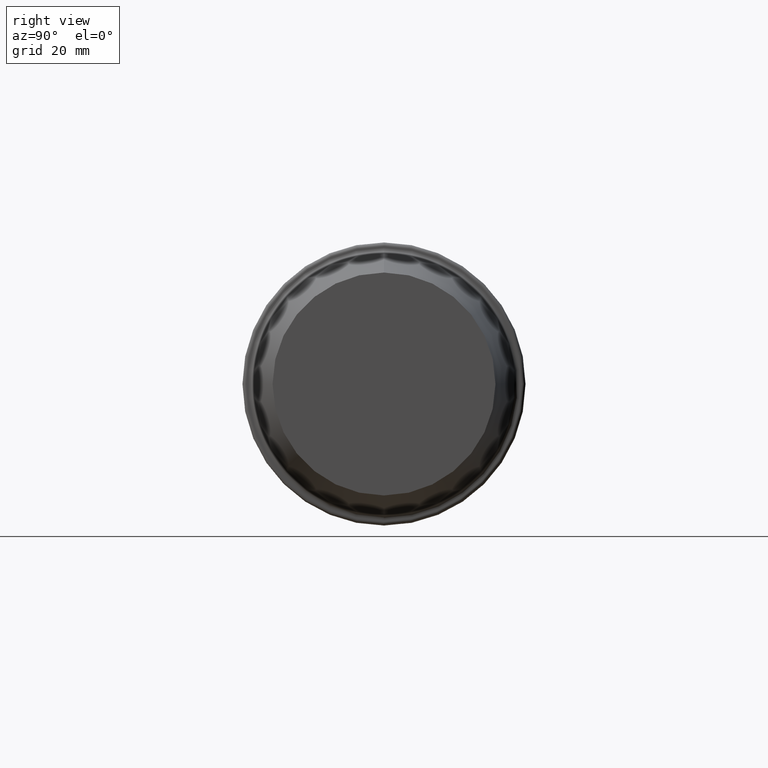
[diagram: clean part render]
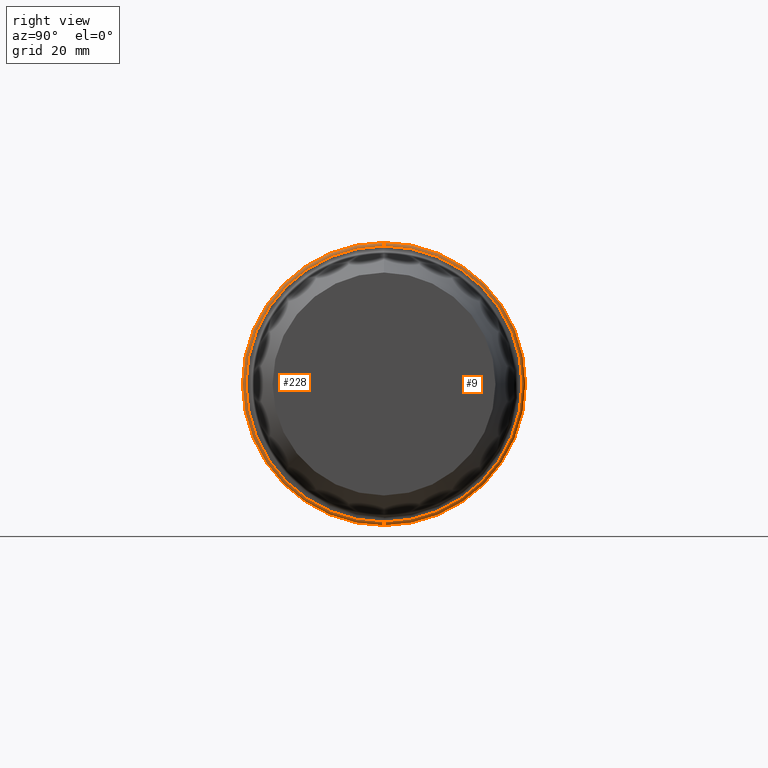
[diagram: same view with one multi-face feature highlighted, each face labeled with its STEP entity id]
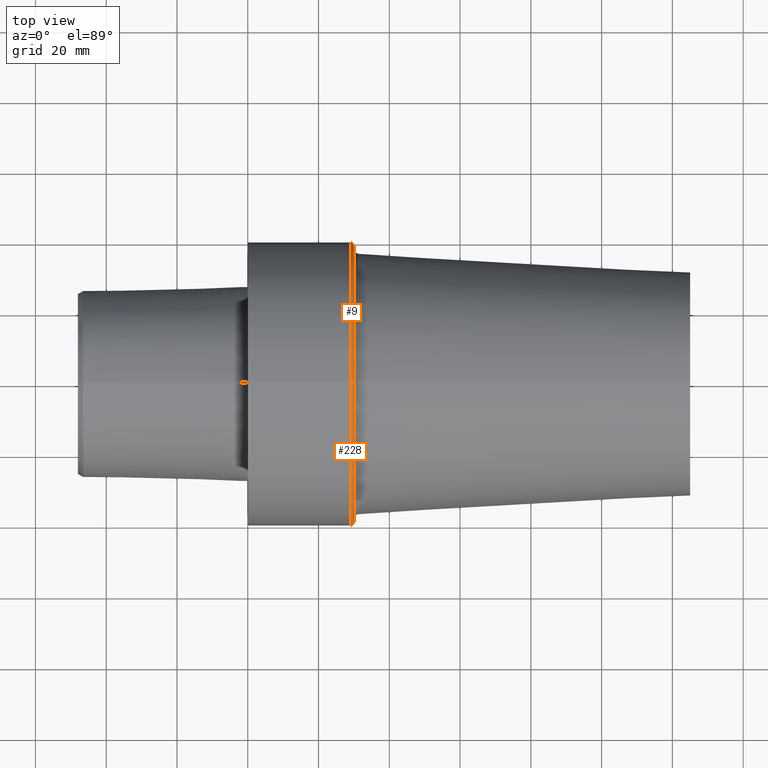
[diagram: same view with one multi-face feature highlighted, each face labeled with its STEP entity id]
A machine part, right view. The highlighted faces form ONE feature: a constant-radius fillet chain: 2 tangent blend faces with common blend radius 1 mm. The faces share edges in the B-rep.
A second angle (top view) of the same feature is appended — it is thin or edge-on in the first view.
Their STEP definitions:
[1] entity #228 (Torus):
#2 = VERTEX_POINT ( 'NONE', #54 ) ;
#15 = DIRECTION ( 'NONE',  ( 0.000000000000000000, 1.000000000000000000, 1.224646799147353947E-16 ) ) ;
#32 = AXIS2_PLACEMENT_3D ( 'NONE', #161, #333, #373 ) ;
#54 = CARTESIAN_POINT ( 'NONE',  ( 28.99999997041999933, 4.897668706494425201E-15, -39.99249995920764889 ) ) ;
#64 = EDGE_CURVE ( 'NONE', #87, #445, #360, .T. ) ;
#87 = VERTEX_POINT ( 'NONE', #318 ) ;
#93 = AXIS2_PLACEMENT_3D ( 'NONE', #101, #268, #277 ) ;
#101 = CARTESIAN_POINT ( 'NONE',  ( 29.99999996940000102, 0.000000000000000000, 0.000000000000000000 ) ) ;
#103 = EDGE_CURVE ( 'NONE', #87, #2, #509, .T. ) ;
#128 = DIRECTION ( 'NONE',  ( 0.000000000000000000, 0.000000000000000000, 1.000000000000000000 ) ) ;
#129 = TOROIDAL_SURFACE ( 'NONE', #168, 38.99249996022764719, 0.9999999989799999156 ) ;
#136 = AXIS2_PLACEMENT_3D ( 'NONE', #359, #15, #180 ) ;
#160 = EDGE_CURVE ( 'NONE', #445, #380, #419, .T. ) ;
#161 = CARTESIAN_POINT ( 'NONE',  ( 28.99999997041999933, 0.000000000000000000, 38.99249996022764719 ) ) ;
#162 = ORIENTED_EDGE ( 'NONE', *, *, #434, .F. ) ;
#168 = AXIS2_PLACEMENT_3D ( 'NONE', #460, #252, #128 ) ;
#171 = ORIENTED_EDGE ( 'NONE', *, *, #160, .T. ) ;
#180 = DIRECTION ( 'NONE',  ( 0.000000000000000000, -1.224646799147358384E-16, 1.000000000000000000 ) ) ;
#189 = DIRECTION ( 'NONE',  ( -1.000000000000000000, 0.000000000000000000, 0.000000000000000000 ) ) ;
#192 = CARTESIAN_POINT ( 'NONE',  ( 28.99999997041999933, 0.000000000000000000, 0.000000000000000000 ) ) ;
#196 = CARTESIAN_POINT ( 'NONE',  ( 28.99999997041999933, 0.000000000000000000, 39.99249995920764889 ) ) ;
#225 = EDGE_LOOP ( 'NONE', ( #469, #533, #171, #162 ) ) ;
#228 = ADVANCED_FACE ( 'NONE', ( #506 ), #129, .T. ) ;
#252 = DIRECTION ( 'NONE',  ( -1.000000000000000000, 0.000000000000000000, 0.000000000000000000 ) ) ;
#268 = DIRECTION ( 'NONE',  ( -1.000000000000000000, 0.000000000000000000, 0.000000000000000000 ) ) ;
#271 = AXIS2_PLACEMENT_3D ( 'NONE', #192, #189, #335 ) ;
#277 = DIRECTION ( 'NONE',  ( 0.000000000000000000, 0.000000000000000000, 1.000000000000000000 ) ) ;
#318 = CARTESIAN_POINT ( 'NONE',  ( 29.99999996940000102, 4.836436366599519633E-15, -38.99249996022764719 ) ) ;
#333 = DIRECTION ( 'NONE',  ( 0.000000000000000000, -1.000000000000000000, 0.000000000000000000 ) ) ;
#335 = DIRECTION ( 'NONE',  ( 0.000000000000000000, 0.000000000000000000, 1.000000000000000000 ) ) ;
#359 = CARTESIAN_POINT ( 'NONE',  ( 28.99999997041999933, 4.775204026704606177E-15, -38.99249996022764719 ) ) ;
#360 = CIRCLE ( 'NONE', #93, 38.99249996022764719 ) ;
#373 = DIRECTION ( 'NONE',  ( 0.000000000000000000, 0.000000000000000000, -1.000000000000000000 ) ) ;
#380 = VERTEX_POINT ( 'NONE', #196 ) ;
#419 = CIRCLE ( 'NONE', #32, 0.9999999989799973621 ) ;
#434 = EDGE_CURVE ( 'NONE', #2, #380, #507, .T. ) ;
#443 = CARTESIAN_POINT ( 'NONE',  ( 29.99999996940000102, 0.000000000000000000, 38.99249996022764719 ) ) ;
#445 = VERTEX_POINT ( 'NONE', #443 ) ;
#460 = CARTESIAN_POINT ( 'NONE',  ( 28.99999997041999933, 0.000000000000000000, 0.000000000000000000 ) ) ;
#469 = ORIENTED_EDGE ( 'NONE', *, *, #103, .F. ) ;
#506 = FACE_OUTER_BOUND ( 'NONE', #225, .T. ) ;
#507 = CIRCLE ( 'NONE', #271, 39.99249995920764889 ) ;
#509 = CIRCLE ( 'NONE', #136, 0.9999999989799973621 ) ;
#533 = ORIENTED_EDGE ( 'NONE', *, *, #64, .T. ) ;
[2] entity #9 (Torus):
#2 = VERTEX_POINT ( 'NONE', #54 ) ;
#9 = ADVANCED_FACE ( 'NONE', ( #127 ), #147, .T. ) ;
#15 = DIRECTION ( 'NONE',  ( 0.000000000000000000, 1.000000000000000000, 1.224646799147353947E-16 ) ) ;
#17 = DIRECTION ( 'NONE',  ( -1.000000000000000000, 0.000000000000000000, 0.000000000000000000 ) ) ;
#32 = AXIS2_PLACEMENT_3D ( 'NONE', #161, #333, #373 ) ;
#54 = CARTESIAN_POINT ( 'NONE',  ( 28.99999997041999933, 4.897668706494425201E-15, -39.99249995920764889 ) ) ;
#68 = DIRECTION ( 'NONE',  ( -1.000000000000000000, 0.000000000000000000, 0.000000000000000000 ) ) ;
#80 = EDGE_CURVE ( 'NONE', #380, #2, #135, .T. ) ;
#85 = EDGE_LOOP ( 'NONE', ( #259, #448, #411, #423 ) ) ;
#87 = VERTEX_POINT ( 'NONE', #318 ) ;
#103 = EDGE_CURVE ( 'NONE', #87, #2, #509, .T. ) ;
#127 = FACE_OUTER_BOUND ( 'NONE', #85, .T. ) ;
#130 = DIRECTION ( 'NONE',  ( -1.000000000000000000, 0.000000000000000000, 0.000000000000000000 ) ) ;
#135 = CIRCLE ( 'NONE', #310, 39.99249995920764889 ) ;
#136 = AXIS2_PLACEMENT_3D ( 'NONE', #359, #15, #180 ) ;
#146 = CARTESIAN_POINT ( 'NONE',  ( 28.99999997041999933, 0.000000000000000000, 0.000000000000000000 ) ) ;
#147 = TOROIDAL_SURFACE ( 'NONE', #290, 38.99249996022764719, 0.9999999989799999156 ) ;
#150 = DIRECTION ( 'NONE',  ( 0.000000000000000000, 0.000000000000000000, 1.000000000000000000 ) ) ;
#160 = EDGE_CURVE ( 'NONE', #445, #380, #419, .T. ) ;
#161 = CARTESIAN_POINT ( 'NONE',  ( 28.99999997041999933, 0.000000000000000000, 38.99249996022764719 ) ) ;
#180 = DIRECTION ( 'NONE',  ( 0.000000000000000000, -1.224646799147358384E-16, 1.000000000000000000 ) ) ;
#194 = CIRCLE ( 'NONE', #279, 38.99249996022764719 ) ;
#196 = CARTESIAN_POINT ( 'NONE',  ( 28.99999997041999933, 0.000000000000000000, 39.99249995920764889 ) ) ;
#259 = ORIENTED_EDGE ( 'NONE', *, *, #397, .T. ) ;
#279 = AXIS2_PLACEMENT_3D ( 'NONE', #412, #68, #150 ) ;
#290 = AXIS2_PLACEMENT_3D ( 'NONE', #342, #130, #393 ) ;
#310 = AXIS2_PLACEMENT_3D ( 'NONE', #146, #17, #481 ) ;
#318 = CARTESIAN_POINT ( 'NONE',  ( 29.99999996940000102, 4.836436366599519633E-15, -38.99249996022764719 ) ) ;
#333 = DIRECTION ( 'NONE',  ( 0.000000000000000000, -1.000000000000000000, 0.000000000000000000 ) ) ;
#342 = CARTESIAN_POINT ( 'NONE',  ( 28.99999997041999933, 0.000000000000000000, 0.000000000000000000 ) ) ;
#359 = CARTESIAN_POINT ( 'NONE',  ( 28.99999997041999933, 4.775204026704606177E-15, -38.99249996022764719 ) ) ;
#373 = DIRECTION ( 'NONE',  ( 0.000000000000000000, 0.000000000000000000, -1.000000000000000000 ) ) ;
#380 = VERTEX_POINT ( 'NONE', #196 ) ;
#393 = DIRECTION ( 'NONE',  ( 0.000000000000000000, 0.000000000000000000, 1.000000000000000000 ) ) ;
#397 = EDGE_CURVE ( 'NONE', #445, #87, #194, .T. ) ;
#411 = ORIENTED_EDGE ( 'NONE', *, *, #80, .F. ) ;
#412 = CARTESIAN_POINT ( 'NONE',  ( 29.99999996940000102, 0.000000000000000000, 0.000000000000000000 ) ) ;
#419 = CIRCLE ( 'NONE', #32, 0.9999999989799973621 ) ;
#423 = ORIENTED_EDGE ( 'NONE', *, *, #160, .F. ) ;
#443 = CARTESIAN_POINT ( 'NONE',  ( 29.99999996940000102, 0.000000000000000000, 38.99249996022764719 ) ) ;
#445 = VERTEX_POINT ( 'NONE', #443 ) ;
#448 = ORIENTED_EDGE ( 'NONE', *, *, #103, .T. ) ;
#481 = DIRECTION ( 'NONE',  ( 0.000000000000000000, 0.000000000000000000, 1.000000000000000000 ) ) ;
#509 = CIRCLE ( 'NONE', #136, 0.9999999989799973621 ) ;